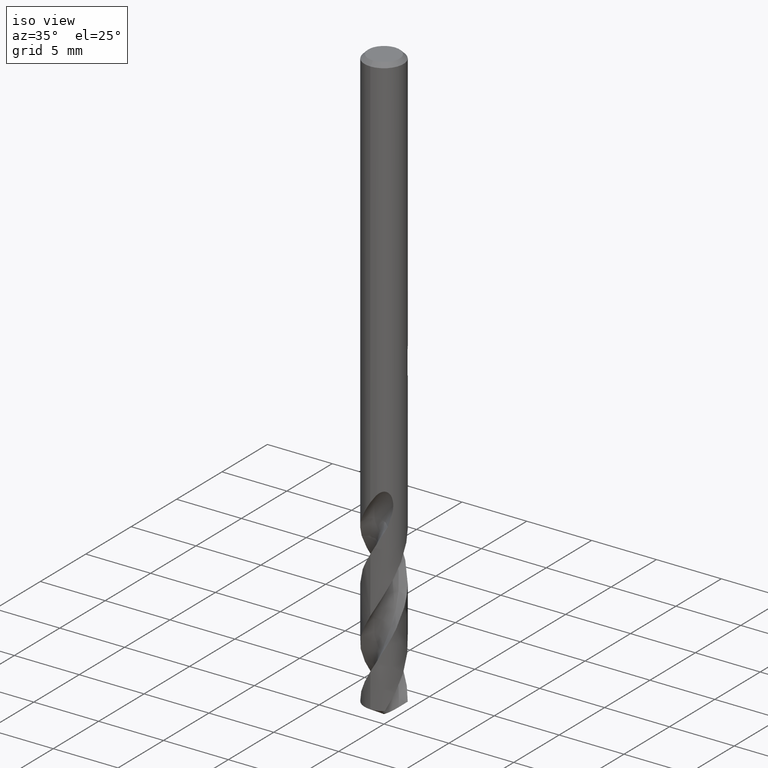
[diagram: clean part render]
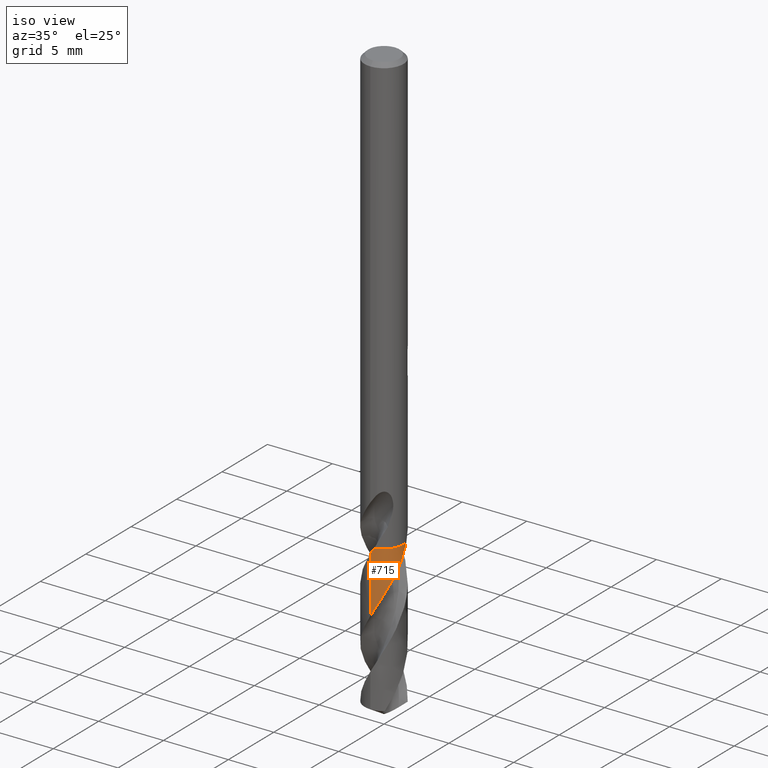
[diagram: same view with one face highlighted and labeled with its STEP entity id]
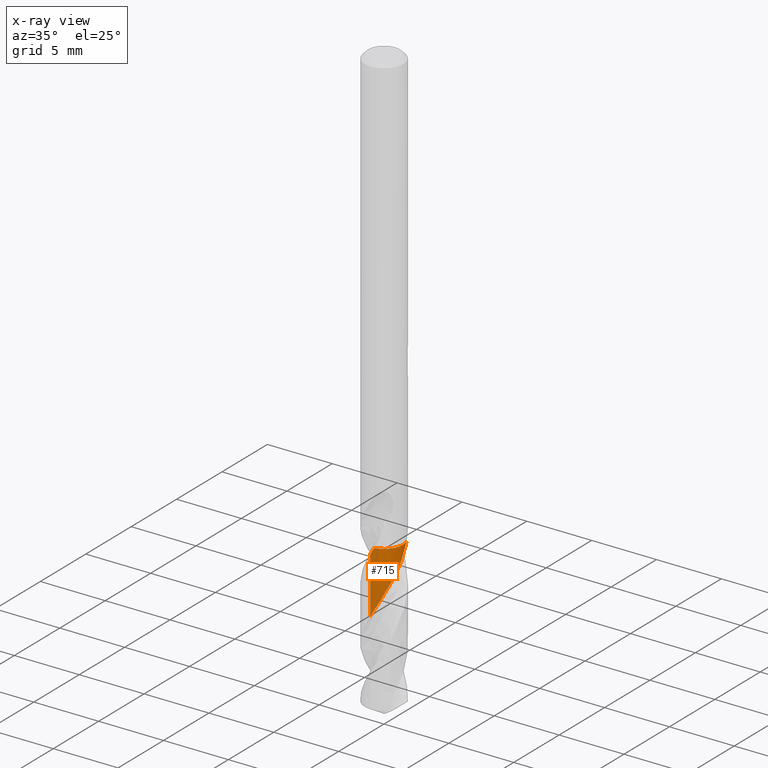
[diagram: x-ray of the same camera — body ghosted, the highlighted face saturated]
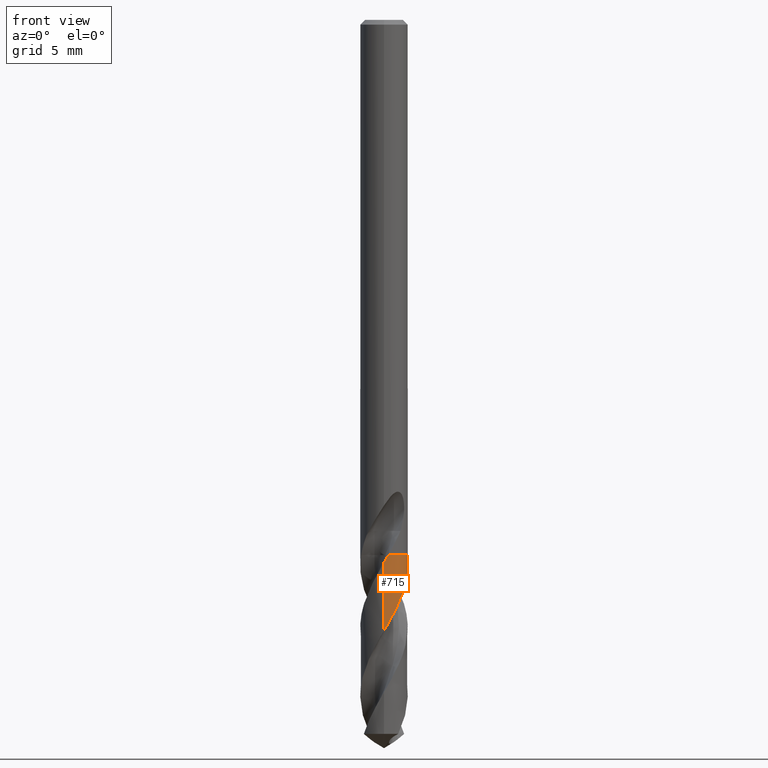
[diagram: same view with one face highlighted and labeled with its STEP entity id]
A machine part, iso view. The second image highlights one B-rep face of the part: STEP entity #715.
The next image is the same camera in x-ray: the body ghosted, the highlighted face saturated — about 0% of this face is hidden behind the body in this view.
A second angle (front view) of the same face is appended — the face is thin or edge-on in the first view.
In plain terms, the highlighted conical surface has half-angle 0.001 deg.
Its self-contained STEP definition (entity closure, byte-faithful):
#279=VERTEX_POINT('',#771);
#305=EDGE_CURVE('',#279,#677,#797,.T.);
#461=EDGE_CURVE('',#701,#717,#971,.T.);
#465=VERTEX_POINT('',#975);
#589=EDGE_CURVE('',#465,#673,#1109,.T.);
#617=EDGE_CURVE('',#717,#465,#1140,.T.);
#631=EDGE_CURVE('',#673,#279,#1155,.T.);
#673=VERTEX_POINT('',#1202);
#677=VERTEX_POINT('',#1206);
#701=VERTEX_POINT('',#1232);
#715=ADVANCED_FACE('',(#1247),#1248,.T.);
#717=VERTEX_POINT('',#1250);
#723=EDGE_CURVE('',#701,#677,#1257,.T.);
#771=CARTESIAN_POINT('',(0.271469897274399,-1.47512854952492,-33.805));
#797=B_SPLINE_CURVE_WITH_KNOTS('',3,(#1482,#1483,#1484,#1485,#1486,#1487,#1488,#1489,#1490,#1491,#1492,#1493,#1494,#1495,#1496,#1497,#1498,#1499,#1500,#1501,#1502,#1503,#1504,#1505,#1506,#1507,#1508,#1509,#1510,#1511,#1512,#1513,#1514,#1515,#1516,#1517,#1518,#1519,#1520,#1521,#1522,#1523,#1524,#1525,#1526,#1527,#1528,#1529,#1530,#1531,#1532,#1533,#1534,#1535,#1536,#1537,#1538,#1539),.UNSPECIFIED.,.F.,.F.,(4,2,2,2,2,2,2,2,2,2,2,2,2,2,2,2,2,2,2,2,2,2,2,2,2,2,2,2,4),(0.0,0.412712008990784,1.02315289068608,1.31457605336843,1.89478417257928,2.18734425539885,2.22542742464843,2.72880783894533,3.02205726837467,3.31184653970921,3.89140064614733,4.03734012945969,4.32642331207954,4.9064632873194,5.48878436197883,6.07265106494204,6.21682466768116,6.82651099823404,7.41092779051126,7.99347327236017,8.28266897532137,8.86236653184512,9.38182822576603,9.83681012137701,10.0364540834485,10.2224758652636,10.922242463698,11.4489190567727,13.0437849519812),.UNSPECIFIED.);
#971=B_SPLINE_CURVE_WITH_KNOTS('',3,(#2834,#2835,#2836,#2837,#2838,#2839,#2840,#2841,#2842,#2843,#2844,#2845,#2846,#2847,#2848,#2849,#2850,#2851,#2852,#2853,#2854,#2855,#2856,#2857,#2858,#2859,#2860,#2861,#2862,#2863,#2864,#2865,#2866,#2867,#2868,#2869,#2870,#2871,#2872,#2873,#2874,#2875,#2876,#2877,#2878,#2879,#2880,#2881,#2882,#2883,#2884,#2885,#2886,#2887,#2888,#2889,#2890,#2891,#2892,#2893,#2894,#2895,#2896,#2897,#2898,#2899,#2900,#2901,#2902,#2903,#2904,#2905),.UNSPECIFIED.,.F.,.F.,(4,2,2,2,2,2,2,2,2,2,2,2,2,2,2,2,2,2,2,2,2,2,2,2,2,2,2,2,2,2,2,2,2,2,2,4),(0.0,0.587548931270342,1.17219633530945,1.75708313733008,2.04868303654778,2.54372425060328,2.79175573145035,3.03846331591425,3.5338127022504,3.78198925935758,4.02889593470141,4.52456850894429,4.77291035589917,5.01998875941831,5.51600228871473,5.76453198042629,6.01182225928897,6.50821840966028,6.75696213142877,7.00450244078225,7.50135093124239,7.75032123867676,7.99810337937848,8.49541238624721,8.74462920359577,8.99267641956067,9.49050599480591,9.71589158313354,10.1366187539142,10.8767489687935,10.9112839413316,11.4568183166256,11.8662820788644,11.9045921760431,12.4995940372104,13.0926342426759),.UNSPECIFIED.);
#975=CARTESIAN_POINT('',(1.44628519507336,0.397440743396553,-33.8));
#1109=CIRCLE('',#4017,1.4999);
#1140=B_SPLINE_CURVE_WITH_KNOTS('',3,(#4459,#4460,#4461,#4462),.UNSPECIFIED.,.F.,.F.,(4,4),(0.0,0.00803917534489892),.UNSPECIFIED.);
#1155=B_SPLINE_CURVE_WITH_KNOTS('',3,(#4645,#4646,#4647,#4648),.UNSPECIFIED.,.F.,.F.,(4,4),(0.0,0.00728516590919301),.UNSPECIFIED.);
#1202=CARTESIAN_POINT('',(0.274306774184053,-1.47460360898675,-33.8));
#1206=CARTESIAN_POINT('',(3.20662361710445E-014,-1.49990424063446,-34.2791369502725));
#1232=CARTESIAN_POINT('',(6.46926910612253E-016,-1.49994239917647,-38.5905595988041));
#1247=FACE_OUTER_BOUND('',#5525,.T.);
#1248=CONICAL_SURFACE('',#5526,1.49995,8.85056862380721E-006);
#1250=CARTESIAN_POINT('',(1.44704588961921,0.394662310633732,-33.805));
#1257=LINE('',#5879,#5880);
#1482=CARTESIAN_POINT('',(0.271758074504302,-1.47507548220704,-33.8044921620274));
#1483=CARTESIAN_POINT('',(0.204142079997621,-1.48753367469231,-33.923649872137));
#1484=CARTESIAN_POINT('',(0.135839845034818,-1.49531161105944,-34.0427677192501));
#1485=CARTESIAN_POINT('',(-0.0339979626250453,-1.50294608388154,-34.3383880973226));
#1486=CARTESIAN_POINT('',(-0.13561660435742,-1.4972141152083,-34.5144406971991));
#1487=CARTESIAN_POINT('',(-0.283854734574056,-1.47360275608757,-34.7748926314409));
#1488=CARTESIAN_POINT('',(-0.331350537983482,-1.46365537333892,-34.8589092459644));
#1489=CARTESIAN_POINT('',(-0.471718585495942,-1.42707387025586,-35.1106495350917));
#1490=CARTESIAN_POINT('',(-0.562589150025644,-1.39375593989645,-35.2780034463587));
#1491=CARTESIAN_POINT('',(-0.69350276562514,-1.33085319226662,-35.5300941036174));
#1492=CARTESIAN_POINT('',(-0.736332784196456,-1.30764384465832,-35.6145251383357));
#1493=CARTESIAN_POINT('',(-0.783375883639774,-1.27910637121211,-35.7100285682876));
#1494=CARTESIAN_POINT('',(-0.788772636334884,-1.27578559791437,-35.7210279008648));
#1495=CARTESIAN_POINT('',(-0.865200410813933,-1.22808721220842,-35.8774400550641));
#1496=CARTESIAN_POINT('',(-0.932409108787161,-1.17787342279401,-36.0227859204621));
#1497=CARTESIAN_POINT('',(-1.03157920900765,-1.08994940037523,-36.2529387488176));
#1498=CARTESIAN_POINT('',(-1.06649464964758,-1.05581228333637,-36.337591488122));
#1499=CARTESIAN_POINT('',(-1.13249906507835,-0.984654685440125,-36.5060020550272));
#1500=CARTESIAN_POINT('',(-1.16356966994114,-0.947736505443901,-36.5896049920326));
#1501=CARTESIAN_POINT('',(-1.25126803670126,-0.832710876513246,-36.840778546147));
#1502=CARTESIAN_POINT('',(-1.30221661750621,-0.750548778979949,-37.0079896388165));
#1503=CARTESIAN_POINT('',(-1.35568206526204,-0.642267081975506,-37.2175870659456));
#1504=CARTESIAN_POINT('',(-1.36590730811727,-0.620225297216221,-37.2597396423506));
#1505=CARTESIAN_POINT('',(-1.39478012350138,-0.553804928504556,-37.385411602016));
#1506=CARTESIAN_POINT('',(-1.41182436823486,-0.508785584719719,-37.4688384552076));
#1507=CARTESIAN_POINT('',(-1.45646685183657,-0.371243943789225,-37.7199886262145));
#1508=CARTESIAN_POINT('',(-1.4773414666598,-0.276758859503945,-37.8873373023966));
#1509=CARTESIAN_POINT('',(-1.50068249067721,-0.0846625105036943,-38.2231782640857));
#1510=CARTESIAN_POINT('',(-1.50301447892119,0.0124497201333591,-38.3909611018642));
#1511=CARTESIAN_POINT('',(-1.48890900885434,0.205952229517585,-38.7279902573295));
#1512=CARTESIAN_POINT('',(-1.47244982217316,0.301957280114101,-38.8962892106383));
#1513=CARTESIAN_POINT('',(-1.44046904374101,0.41888676674063,-39.1066311507198));
#1514=CARTESIAN_POINT('',(-1.43358235510411,0.441881858907315,-39.1482653827277));
#1515=CARTESIAN_POINT('',(-1.3947075053853,0.561193628417813,-39.3661081650064));
#1516=CARTESIAN_POINT('',(-1.35354903891414,0.654263841483413,-39.5420858500934));
#1517=CARTESIAN_POINT('',(-1.25514375811712,0.827008508035829,-39.887164785757));
#1518=CARTESIAN_POINT('',(-1.19888451451342,0.906641434344985,-40.0554942987445));
#1519=CARTESIAN_POINT('',(-1.07198702229595,1.05361999111078,-40.3928029203161));
#1520=CARTESIAN_POINT('',(-1.0016497183319,1.12070926518766,-40.5608028106218));
#1521=CARTESIAN_POINT('',(-0.887388702842758,1.21026733765262,-40.8127098633278));
#1522=CARTESIAN_POINT('',(-0.848088099864974,1.23812429421553,-40.8961883904151));
#1523=CARTESIAN_POINT('',(-0.72621952503089,1.31598225381192,-41.1473438389336));
#1524=CARTESIAN_POINT('',(-0.640064684332631,1.35997649927301,-41.3146505707482));
#1525=CARTESIAN_POINT('',(-0.469784692120871,1.4271277263655,-41.6323268036962));
#1526=CARTESIAN_POINT('',(-0.386743023204882,1.45183178745165,-41.7820690614669));
#1527=CARTESIAN_POINT('',(-0.227894963097957,1.48449210692345,-42.0637706368616));
#1528=CARTESIAN_POINT('',(-0.152653559574944,1.49410869940999,-42.1951450357564));
#1529=CARTESIAN_POINT('',(-0.0437805918883758,1.49970549490411,-42.3843527766316));
#1530=CARTESIAN_POINT('',(-0.0105263348326907,1.50030812830823,-42.4420314963883));
#1531=CARTESIAN_POINT('',(0.0537051306559269,1.49933593452735,-42.5534934930449));
#1532=CARTESIAN_POINT('',(0.0846549669921118,1.49790738868857,-42.6072268154996));
#1533=CARTESIAN_POINT('',(0.231689862980313,1.48655080112395,-42.8632952847809));
#1534=CARTESIAN_POINT('',(0.346449644694229,1.46407245735263,-43.0651130458756));
#1535=CARTESIAN_POINT('',(0.541029712970203,1.40176331861343,-43.4196226138401));
#1536=CARTESIAN_POINT('',(0.622041855357643,1.36773802086928,-43.5715633528794));
#1537=CARTESIAN_POINT('',(0.934389728194637,1.20305925918091,-44.1850127361961));
#1538=CARTESIAN_POINT('',(1.13228840240808,1.01906777675892,-44.6377787913833));
#1539=CARTESIAN_POINT('',(1.27285982394134,0.793616953319442,-45.0987090714587));
#2834=CARTESIAN_POINT('',(-0.898964889177857,1.20077563600593,-45.0987090714586));
#2835=CARTESIAN_POINT('',(-0.97680051497333,1.14250184227968,-44.9287006502512));
#2836=CARTESIAN_POINT('',(-1.04899950517055,1.07664198458802,-44.760009289105));
#2837=CARTESIAN_POINT('',(-1.17960625681869,0.931656461997672,-44.42164619341));
#2838=CARTESIAN_POINT('',(-1.23753883157774,0.853196197475255,-44.2525407343408));
#2839=CARTESIAN_POINT('',(-1.33741667374212,0.686120646854864,-43.9148704593237));
#2840=CARTESIAN_POINT('',(-1.37908841830142,0.597941942158084,-43.7471042262633));
#2841=CARTESIAN_POINT('',(-1.4282821581116,0.46077942917842,-43.4939923568902));
#2842=CARTESIAN_POINT('',(-1.44240265633494,0.41445225558287,-43.409545977214));
#2843=CARTESIAN_POINT('',(-1.47438282298118,0.287908378341074,-43.1825042793626));
#2844=CARTESIAN_POINT('',(-1.4879592770025,0.206654464999807,-43.0403663331367));
#2845=CARTESIAN_POINT('',(-1.49822499090967,0.0834531398252047,-42.8261355034431));
#2846=CARTESIAN_POINT('',(-1.499949280934,0.0422515800755956,-42.7546958456908));
#2847=CARTESIAN_POINT('',(-1.50000703161533,-0.0398761499811478,-42.6119544502924));
#2848=CARTESIAN_POINT('',(-1.4983605825769,-0.0807570891444613,-42.5406123359207));
#2849=CARTESIAN_POINT('',(-1.48838702718813,-0.20341905544537,-42.3265747469618));
#2850=CARTESIAN_POINT('',(-1.4750066872415,-0.284713847587108,-42.1844254457083));
#2851=CARTESIAN_POINT('',(-1.444952833217,-0.404637051639245,-41.9701911215027));
#2852=CARTESIAN_POINT('',(-1.43328487118696,-0.444190133844933,-41.8987510738584));
#2853=CARTESIAN_POINT('',(-1.40682515142878,-0.521950471361771,-41.7559961111617));
#2854=CARTESIAN_POINT('',(-1.3920665058254,-0.560120264929224,-41.6846391224045));
#2855=CARTESIAN_POINT('',(-1.34302809932136,-0.67299910080611,-41.4705891495833));
#2856=CARTESIAN_POINT('',(-1.30412116594084,-0.745622001116701,-41.3284420351136));
#2857=CARTESIAN_POINT('',(-1.23696182315081,-0.849424895542258,-41.114208133952));
#2858=CARTESIAN_POINT('',(-1.21314940473115,-0.883094725607306,-41.0427678718062));
#2859=CARTESIAN_POINT('',(-1.16300153244408,-0.948153052115347,-40.9000098708445));
#2860=CARTESIAN_POINT('',(-1.13671050977985,-0.979515149503481,-40.8286491660727));
#2861=CARTESIAN_POINT('',(-1.0538692709104,-1.07050794713356,-40.6146068254887));
#2862=CARTESIAN_POINT('',(-0.993608762178671,-1.12667740866116,-40.4724654755174));
#2863=CARTESIAN_POINT('',(-0.896542569677424,-1.20323973328172,-40.2582390182976));
#2864=CARTESIAN_POINT('',(-0.863136115235632,-1.22742053153003,-40.1867983723811));
#2865=CARTESIAN_POINT('',(-0.794666998841231,-1.2728113827446,-40.044033234631));
#2866=CARTESIAN_POINT('',(-0.75965587434954,-1.29400959853728,-39.9726648848031));
#2867=CARTESIAN_POINT('',(-0.651885633110519,-1.35338411167316,-39.7586254436777));
#2868=CARTESIAN_POINT('',(-0.576725541532742,-1.38709219695815,-39.6164895957228));
#2869=CARTESIAN_POINT('',(-0.460142323313087,-1.42822299616722,-39.4022714678663));
#2870=CARTESIAN_POINT('',(-0.420715554240283,-1.44032675797497,-39.3308298359745));
#2871=CARTESIAN_POINT('',(-0.341245180277532,-1.46118934906237,-39.1880536700131));
#2872=CARTESIAN_POINT('',(-0.301255077603228,-1.46995269923641,-39.1166748236996));
#2873=CARTESIAN_POINT('',(-0.180081174235621,-1.4913590230446,-38.9026272309329));
#2874=CARTESIAN_POINT('',(-0.0980620569516919,-1.49899913712707,-38.7604898596996));
#2875=CARTESIAN_POINT('',(0.0255589480621662,-1.50029195322154,-38.5462702603326));
#2876=CARTESIAN_POINT('',(0.0667827901402179,-1.49901972505034,-38.4748280955575));
#2877=CARTESIAN_POINT('',(0.14873725976908,-1.49310996418542,-38.332046415851));
#2878=CARTESIAN_POINT('',(0.189417508808789,-1.48849372467311,-38.260661409841));
#2879=CARTESIAN_POINT('',(0.311000155205718,-1.46963783787386,-38.0466189270658));
#2880=CARTESIAN_POINT('',(0.3910864872675,-1.45039385765524,-37.9044896546809));
#2881=CARTESIAN_POINT('',(0.50850146284557,-1.41171269623181,-37.6902794354106));
#2882=CARTESIAN_POINT('',(0.547108099145057,-1.39720083214361,-37.6188379180603));
#2883=CARTESIAN_POINT('',(0.62277212328948,-1.36514931304266,-37.4760521222374));
#2884=CARTESIAN_POINT('',(0.659787455877121,-1.34764612605175,-37.4046621941733));
#2885=CARTESIAN_POINT('',(0.768763385065674,-1.29055616728636,-37.190621024301));
#2886=CARTESIAN_POINT('',(0.838344170148439,-1.24649363682489,-37.0484883873936));
#2887=CARTESIAN_POINT('',(0.933800336157714,-1.17438818343929,-36.8411888840559));
#2888=CARTESIAN_POINT('',(0.962674984513003,-1.15083493540402,-36.7766357333918));
#2889=CARTESIAN_POINT('',(1.04278539681656,-1.08036999654646,-36.5913307180151));
#2890=CARTESIAN_POINT('',(1.09168971123947,-1.03093125770766,-36.4702198312003));
#2891=CARTESIAN_POINT('',(1.21680972009154,-0.885493219794315,-36.1372374930305));
#2892=CARTESIAN_POINT('',(1.28481182479457,-0.783502528987614,-35.9272110466073));
#2893=CARTESIAN_POINT('',(1.34219862977338,-0.669541467751293,-35.7048088401136));
#2894=CARTESIAN_POINT('',(1.34472785055659,-0.664447030786116,-35.6948916879763));
#2895=CARTESIAN_POINT('',(1.38683696613274,-0.578399694530261,-35.5279513335844));
#2896=CARTESIAN_POINT('',(1.41914362427917,-0.493919340595869,-35.3718418395616));
#2897=CARTESIAN_POINT('',(1.46209588683412,-0.341496953172587,-35.0974388464266));
#2898=CARTESIAN_POINT('',(1.47602097648899,-0.275084146809685,-34.9801132783758));
#2899=CARTESIAN_POINT('',(1.4862843205446,-0.201809103471986,-34.8513019287721));
#2900=CARTESIAN_POINT('',(1.48712177514399,-0.195541825623319,-34.8402881241922));
#2901=CARTESIAN_POINT('',(1.50033715041613,-0.0916304465632763,-34.6579549081476));
#2902=CARTESIAN_POINT('',(1.50312993565743,0.0070799866210474,-34.4881076791453));
#2903=CARTESIAN_POINT('',(1.48927454659307,0.203563068856034,-34.1464777594349));
#2904=CARTESIAN_POINT('',(1.47279008386338,0.300286346791669,-33.9748172647512));
#2905=CARTESIAN_POINT('',(1.44703474905601,0.394703148990546,-33.8049265146903));
#4017=AXIS2_PLACEMENT_3D('',#6684,#6685,#6686);
#4459=CARTESIAN_POINT('',(1.44734345425828,0.393569714738715,-33.8069658849574));
#4460=CARTESIAN_POINT('',(1.44699248082321,0.394860333044263,-33.804643806421));
#4461=CARTESIAN_POINT('',(1.44663972802148,0.396150677040411,-33.8023218444866));
#4462=CARTESIAN_POINT('',(1.44628519507336,0.397440743396557,-33.8));
#4645=CARTESIAN_POINT('',(0.27430677418407,-1.47460360898674,-33.8));
#4646=CARTESIAN_POINT('',(0.273113581053555,-1.47482558652602,-33.802103351491));
#4647=CARTESIAN_POINT('',(0.271920134380868,-1.4750461128771,-33.8042067099124));
#4648=CARTESIAN_POINT('',(0.27072643681268,-1.47526518766727,-33.8063100795422));
#5525=EDGE_LOOP('',(#6801,#6802,#6803,#6804,#6805,#6806));
#5526=AXIS2_PLACEMENT_3D('',#6807,#6808,#6809);
#5879=CARTESIAN_POINT('',(1.83631727401027E-016,-1.49995,-39.4493545357293));
#5880=VECTOR('',#6817,1.0);
#6684=CARTESIAN_POINT('',(0.0,0.0,-33.8));
#6685=DIRECTION('',(0.0,0.0,-1.0));
#6686=DIRECTION('',(0.0,1.0,0.0));
#6801=ORIENTED_EDGE('',*,*,#723,.F.);
#6802=ORIENTED_EDGE('',*,*,#461,.T.);
#6803=ORIENTED_EDGE('',*,*,#617,.T.);
#6804=ORIENTED_EDGE('',*,*,#589,.T.);
#6805=ORIENTED_EDGE('',*,*,#631,.T.);
#6806=ORIENTED_EDGE('',*,*,#305,.T.);
#6807=CARTESIAN_POINT('',(0.0,0.0,-39.4493545357293));
#6808=DIRECTION('',(0.0,-0.0,-1.0));
#6809=DIRECTION('',(0.0,1.0,0.0));
#6817=DIRECTION('',(-1.08384625715138E-021,8.85056862369166E-006,0.999999999960834));